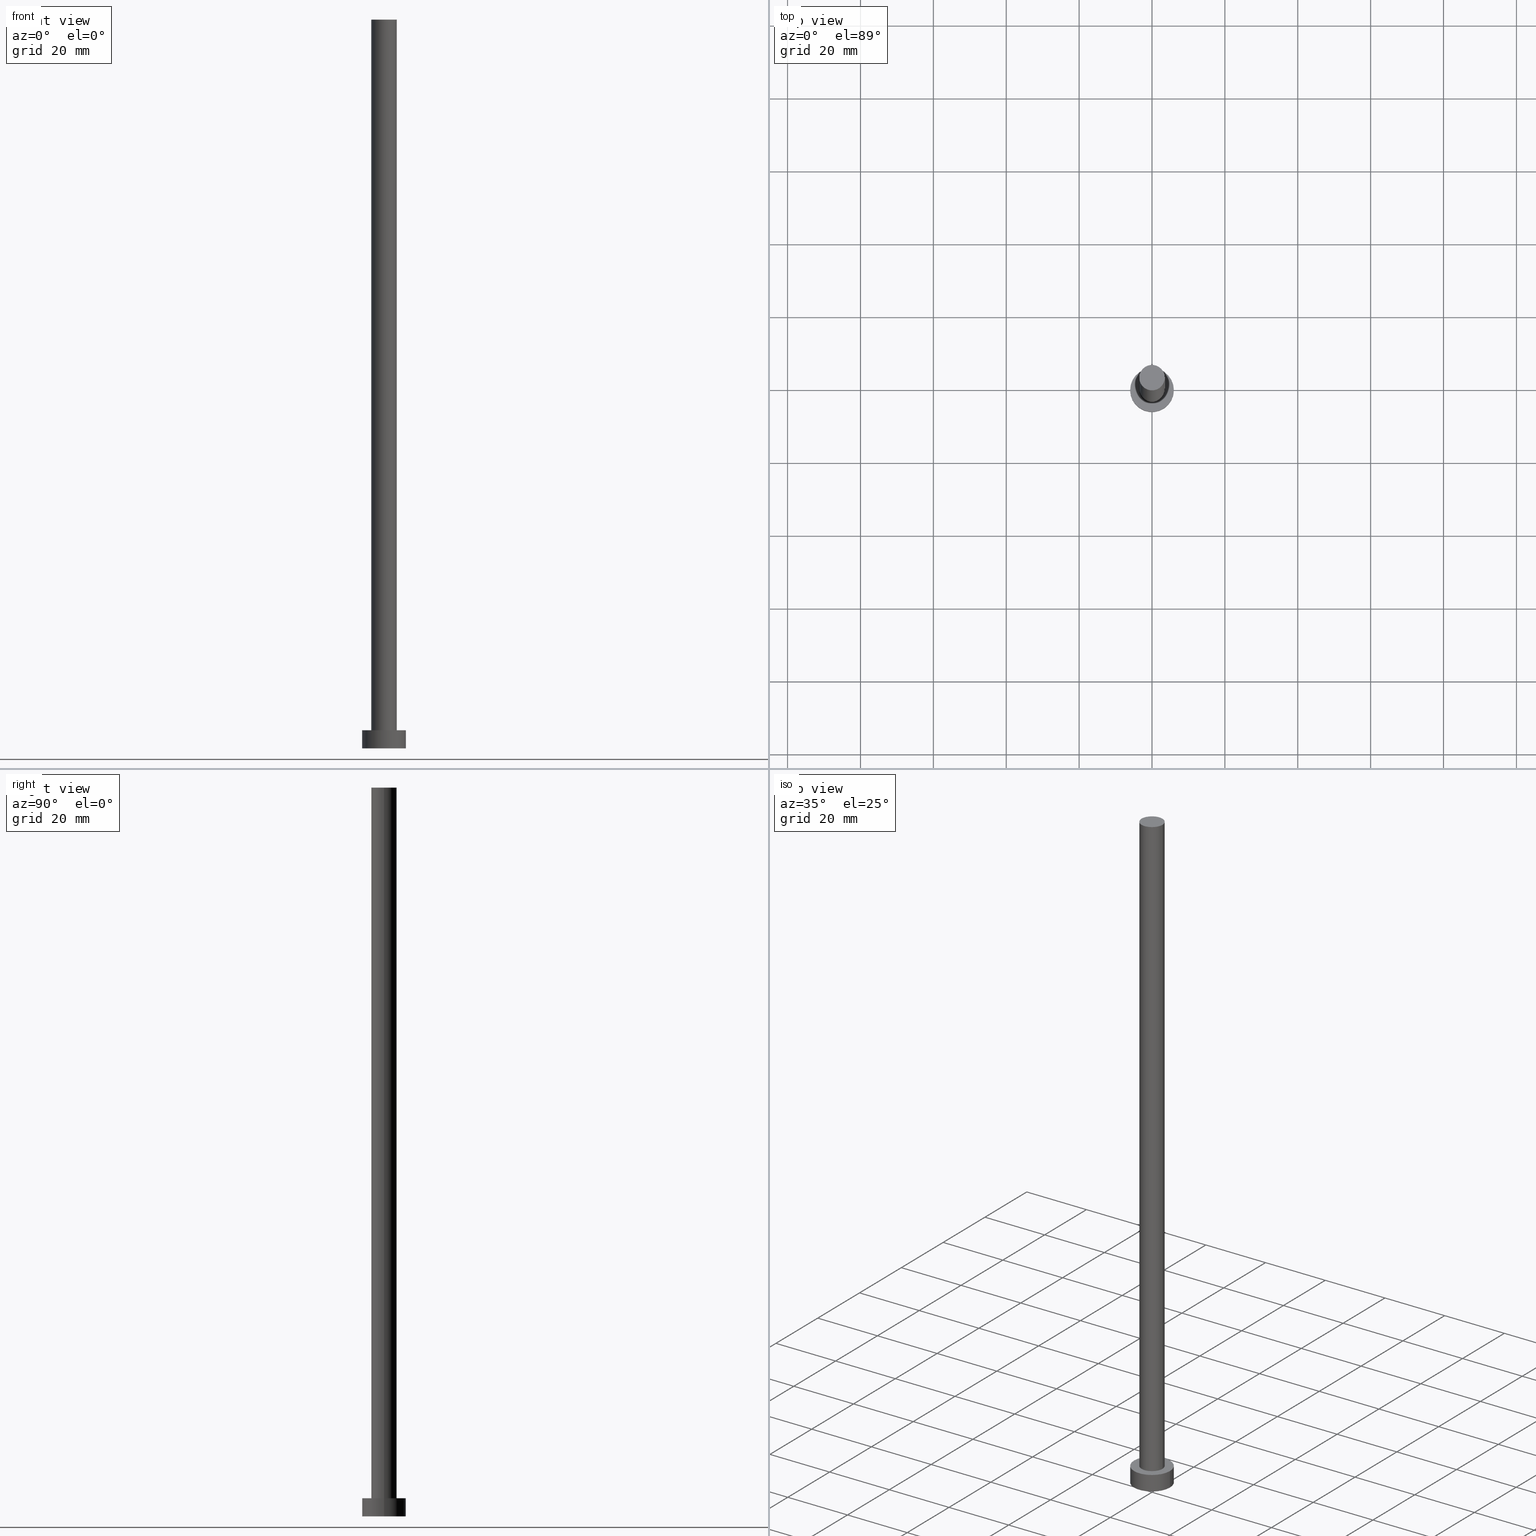
[diagram: canonical four-view strip — front | top / right | iso, engineering-drawing reading convention]
A machine part, canonical four-view strip (front | top / right | iso — engineering-drawing reading convention). The complete STEP part file that produces these views, byte-faithful:
ISO-10303-21;
HEADER;
FILE_DESCRIPTION (( 'STEP AP203' ),
    '1' );
FILE_NAME ('d45a.STEP',
    '2023-02-12T11:59:40',
    ( '' ),
    ( '' ),
    'SwSTEP 2.0',
    'SolidWorks 2019',
    '' );
FILE_SCHEMA (( 'CONFIG_CONTROL_DESIGN' ));
ENDSEC;

DATA;
#1 = CALENDAR_DATE ( 2023, 12, 2 ) ;
#2 = CYLINDRICAL_SURFACE ( 'NONE', #116, 6.000000000000000888 ) ;
#3 = APPROVAL ( #161, 'NEUR�EN�' ) ;
#4 = CIRCLE ( 'NONE', #154, 6.000000000000000888 ) ;
#5 = DIRECTION ( 'NONE',  ( 0.000000000000000000, 0.000000000000000000, 1.000000000000000000 ) ) ;
#6 = DIRECTION ( 'NONE',  ( -0.000000000000000000, -0.000000000000000000, -1.000000000000000000 ) ) ;
#7 = CALENDAR_DATE ( 2023, 12, 2 ) ;
#8 = ORIENTED_EDGE ( 'NONE', *, *, #114, .T. ) ;
#9 = DIRECTION ( 'NONE',  ( 1.000000000000000000, 0.000000000000000000, -0.000000000000000000 ) ) ;
#10 = DIRECTION ( 'NONE',  ( 0.000000000000000000, 0.000000000000000000, 1.000000000000000000 ) ) ;
#11 = CLOSED_SHELL ( 'NONE', ( #110, #78, #155, #21, #197, #191, #241 ) ) ;
#12 = FACE_BOUND ( 'NONE', #140, .T. ) ;
#13 = CARTESIAN_POINT ( 'NONE',  ( 6.000000000000000888, 7.347880794884120722E-16, 0.000000000000000000 ) ) ;
#14 = CC_DESIGN_PERSON_AND_ORGANIZATION_ASSIGNMENT ( #99, #151, ( #182 ) ) ;
#15 = CIRCLE ( 'NONE', #249, 3.500000000000000000 ) ;
#16 = PERSON_AND_ORGANIZATION_ROLE ( 'design_supplier' ) ;
#17 = CC_DESIGN_APPROVAL ( #3, ( #52 ) ) ;
#18 = CALENDAR_DATE ( 2023, 12, 2 ) ;
#19 = CARTESIAN_POINT ( 'NONE',  ( 0.000000000000000000, 0.000000000000000000, 0.000000000000000000 ) ) ;
#20 = CARTESIAN_POINT ( 'NONE',  ( 0.000000000000000000, 0.000000000000000000, 5.000000000000000000 ) ) ;
#21 = ADVANCED_FACE ( 'NONE', ( #12, #196 ), #92, .T. ) ;
#22 = EDGE_CURVE ( 'NONE', #133, #68, #15, .T. ) ;
#23 = DIRECTION ( 'NONE',  ( 0.000000000000000000, 0.000000000000000000, 1.000000000000000000 ) ) ;
#24 = DIRECTION ( 'NONE',  ( -0.000000000000000000, -0.000000000000000000, -1.000000000000000000 ) ) ;
#25 = PERSON_AND_ORGANIZATION_ROLE ( 'design_owner' ) ;
#26 = DIRECTION ( 'NONE',  ( 1.000000000000000000, 0.000000000000000000, 0.000000000000000000 ) ) ;
#27 = VERTEX_POINT ( 'NONE', #13 ) ;
#28 = FACE_OUTER_BOUND ( 'NONE', #250, .T. ) ;
#29 = CC_DESIGN_DATE_AND_TIME_ASSIGNMENT ( #231, #227, ( #52 ) ) ;
#30 = EDGE_LOOP ( 'NONE', ( #242, #236, #96, #117 ) ) ;
#31 = ORIENTED_EDGE ( 'NONE', *, *, #206, .F. ) ;
#32 = DIRECTION ( 'NONE',  ( 1.000000000000000000, 0.000000000000000000, -0.000000000000000000 ) ) ;
#33 = PERSON_AND_ORGANIZATION ( #101, #130 ) ;
#34 = DIRECTION ( 'NONE',  ( -0.000000000000000000, -0.000000000000000000, -1.000000000000000000 ) ) ;
#35 = DIRECTION ( 'NONE',  ( 1.000000000000000000, 0.000000000000000000, 0.000000000000000000 ) ) ;
#36 = APPROVAL_DATE_TIME ( #221, #3 ) ;
#37 = CC_DESIGN_PERSON_AND_ORGANIZATION_ASSIGNMENT ( #172, #70, ( #123 ) ) ;
#38 = CC_DESIGN_SECURITY_CLASSIFICATION ( #182, ( #123 ) ) ;
#39 = COORDINATED_UNIVERSAL_TIME_OFFSET ( 1, 0, .AHEAD. ) ;
#40 = CARTESIAN_POINT ( 'NONE',  ( 0.000000000000000000, 0.000000000000000000, 200.0000000000000000 ) ) ;
#41 = EDGE_CURVE ( 'NONE', #81, #198, #94, .T. ) ;
#42 = DIRECTION ( 'NONE',  ( -0.000000000000000000, -0.000000000000000000, -1.000000000000000000 ) ) ;
#43 = PRODUCT ( 'd45a', 'd45a', '', ( #240 ) ) ;
#44 = DIRECTION ( 'NONE',  ( 1.000000000000000000, 0.000000000000000000, 0.000000000000000000 ) ) ;
#45 = VECTOR ( 'NONE', #138, 1000.000000000000000 ) ;
#46 = FACE_OUTER_BOUND ( 'NONE', #216, .T. ) ;
#47 = ADVANCED_BREP_SHAPE_REPRESENTATION ( 'd45a', ( #167, #143 ), #113 ) ;
#48 = APPROVAL_PERSON_ORGANIZATION ( #170, #135, #95 ) ;
#49 = LINE ( 'NONE', #229, #64 ) ;
#50 = CARTESIAN_POINT ( 'NONE',  ( 0.000000000000000000, 0.000000000000000000, 5.000000000000000000 ) ) ;
#51 = CARTESIAN_POINT ( 'NONE',  ( 0.000000000000000000, 0.000000000000000000, 5.000000000000000000 ) ) ;
#52 = PRODUCT_DEFINITION ( 'NEZN�M�', '', #123, #59 ) ;
#53 = DIRECTION ( 'NONE',  ( 0.000000000000000000, 0.000000000000000000, 1.000000000000000000 ) ) ;
#54 = APPROVAL_ROLE ( '' ) ;
#55 = APPROVAL ( #203, 'NEUR�EN�' ) ;
#56 = AXIS2_PLACEMENT_3D ( 'NONE', #245, #23, #225 ) ;
#57 = ORIENTED_EDGE ( 'NONE', *, *, #58, .F. ) ;
#58 = EDGE_CURVE ( 'NONE', #68, #133, #186, .T. ) ;
#59 = DESIGN_CONTEXT ( 'detailed design', #72, 'design' ) ;
#60 = ORIENTED_EDGE ( 'NONE', *, *, #67, .F. ) ;
#61 = CARTESIAN_POINT ( 'NONE',  ( -3.500000000000000000, 0.000000000000000000, 200.0000000000000000 ) ) ;
#62 = CYLINDRICAL_SURFACE ( 'NONE', #243, 6.000000000000000888 ) ;
#63 = CARTESIAN_POINT ( 'NONE',  ( 0.000000000000000000, 0.000000000000000000, 5.000000000000000000 ) ) ;
#64 = VECTOR ( 'NONE', #6, 1000.000000000000000 ) ;
#65 = EDGE_LOOP ( 'NONE', ( #31, #107 ) ) ;
#66 = SHAPE_DEFINITION_REPRESENTATION ( #246, #47 ) ;
#67 = EDGE_CURVE ( 'NONE', #131, #133, #219, .T. ) ;
#68 = VERTEX_POINT ( 'NONE', #218 ) ;
#69 = DIRECTION ( 'NONE',  ( -0.000000000000000000, -0.000000000000000000, -1.000000000000000000 ) ) ;
#70 = PERSON_AND_ORGANIZATION_ROLE ( 'creator' ) ;
#71 = DIRECTION ( 'NONE',  ( 0.000000000000000000, 0.000000000000000000, 1.000000000000000000 ) ) ;
#72 = APPLICATION_CONTEXT ( 'configuration controlled 3d designs of mechanical parts and assemblies' ) ;
#73 = DATE_AND_TIME ( #1, #202 ) ;
#74 = EDGE_CURVE ( 'NONE', #147, #81, #199, .T. ) ;
#75 = PERSON_AND_ORGANIZATION ( #101, #130 ) ;
#76 = CARTESIAN_POINT ( 'NONE',  ( 3.500000000000000000, 4.286263797015736595E-16, 200.0000000000000000 ) ) ;
#77 = ORIENTED_EDGE ( 'NONE', *, *, #121, .F. ) ;
#78 = ADVANCED_FACE ( 'NONE', ( #178 ), #2, .T. ) ;
#79 = LINE ( 'NONE', #223, #90 ) ;
#80 = PERSON_AND_ORGANIZATION ( #101, #130 ) ;
#81 = VERTEX_POINT ( 'NONE', #200 ) ;
#82 = DIRECTION ( 'NONE',  ( 0.000000000000000000, 0.000000000000000000, 1.000000000000000000 ) ) ;
#83 = ORIENTED_EDGE ( 'NONE', *, *, #58, .T. ) ;
#84 = DIRECTION ( 'NONE',  ( 0.000000000000000000, 0.000000000000000000, 1.000000000000000000 ) ) ;
#85 = PRODUCT_RELATED_PRODUCT_CATEGORY ( 'detail', '', ( #43 ) ) ;
#86 = APPROVAL_PERSON_ORGANIZATION ( #210, #55, #255 ) ;
#87 =( LENGTH_UNIT ( ) NAMED_UNIT ( * ) SI_UNIT ( .MILLI., .METRE. ) );
#88 = CYLINDRICAL_SURFACE ( 'NONE', #215, 3.500000000000000000 ) ;
#89 = COORDINATED_UNIVERSAL_TIME_OFFSET ( 1, 0, .AHEAD. ) ;
#90 = VECTOR ( 'NONE', #42, 1000.000000000000000 ) ;
#91 = ORIENTED_EDGE ( 'NONE', *, *, #41, .T. ) ;
#92 = PLANE ( 'NONE',  #149 ) ;
#93 = LOCAL_TIME ( 12, 59, 40.00000000000000000, #89 ) ;
#94 = LINE ( 'NONE', #253, #158 ) ;
#95 = APPROVAL_ROLE ( '' ) ;
#96 = ORIENTED_EDGE ( 'NONE', *, *, #201, .T. ) ;
#97 = APPROVAL_DATE_TIME ( #237, #55 ) ;
#98 = DATE_TIME_ROLE ( 'classification_date' ) ;
#99 = PERSON_AND_ORGANIZATION ( #101, #130 ) ;
#100 = DIRECTION ( 'NONE',  ( 0.000000000000000000, 0.000000000000000000, 1.000000000000000000 ) ) ;
#101 = PERSON ( 'NEUR�EN�', 'NEUR�EN�', 'NEUR�EN�', ('NEUR�EN�'), ('NEUR�EN�'), ('NEUR�EN�') ) ;
#102 = PERSON_AND_ORGANIZATION_ROLE ( 'creator' ) ;
#103 = CC_DESIGN_PERSON_AND_ORGANIZATION_ASSIGNMENT ( #80, #25, ( #43 ) ) ;
#104 = AXIS2_PLACEMENT_3D ( 'NONE', #247, #188, #44 ) ;
#105 = ORIENTED_EDGE ( 'NONE', *, *, #235, .F. ) ;
#106 = CARTESIAN_POINT ( 'NONE',  ( 0.000000000000000000, 0.000000000000000000, 0.000000000000000000 ) ) ;
#107 = ORIENTED_EDGE ( 'NONE', *, *, #201, .F. ) ;
#108 = CARTESIAN_POINT ( 'NONE',  ( 0.000000000000000000, 0.000000000000000000, 0.000000000000000000 ) ) ;
#109 = CARTESIAN_POINT ( 'NONE',  ( -6.000000000000000888, 0.000000000000000000, 0.000000000000000000 ) ) ;
#110 = ADVANCED_FACE ( 'NONE', ( #118 ), #175, .T. ) ;
#111 = SECURITY_CLASSIFICATION_LEVEL ( 'unclassified' ) ;
#112 = DIRECTION ( 'NONE',  ( 1.000000000000000000, 0.000000000000000000, 0.000000000000000000 ) ) ;
#113 =( GEOMETRIC_REPRESENTATION_CONTEXT ( 3 ) GLOBAL_UNCERTAINTY_ASSIGNED_CONTEXT ( ( #171 ) ) GLOBAL_UNIT_ASSIGNED_CONTEXT ( ( #87, #233, #181 ) ) REPRESENTATION_CONTEXT ( 'NONE', 'WORKASPACE' ) );
#114 = EDGE_CURVE ( 'NONE', #244, #68, #79, .T. ) ;
#115 = COORDINATED_UNIVERSAL_TIME_OFFSET ( 1, 0, .AHEAD. ) ;
#116 = AXIS2_PLACEMENT_3D ( 'NONE', #156, #34, #119 ) ;
#117 = ORIENTED_EDGE ( 'NONE', *, *, #41, .F. ) ;
#118 = FACE_OUTER_BOUND ( 'NONE', #192, .T. ) ;
#119 = DIRECTION ( 'NONE',  ( -1.000000000000000000, 0.000000000000000000, 0.000000000000000000 ) ) ;
#120 = DIRECTION ( 'NONE',  ( 1.000000000000000000, 0.000000000000000000, 0.000000000000000000 ) ) ;
#121 = EDGE_CURVE ( 'NONE', #81, #147, #4, .T. ) ;
#122 = PERSON_AND_ORGANIZATION ( #101, #130 ) ;
#123 = PRODUCT_DEFINITION_FORMATION_WITH_SPECIFIED_SOURCE ( 'LIBOVOLN�', '', #43, .NOT_KNOWN. ) ;
#124 = DIRECTION ( 'NONE',  ( 1.000000000000000000, 0.000000000000000000, -0.000000000000000000 ) ) ;
#125 = ORIENTED_EDGE ( 'NONE', *, *, #235, .T. ) ;
#126 = FACE_OUTER_BOUND ( 'NONE', #65, .T. ) ;
#127 = CARTESIAN_POINT ( 'NONE',  ( 0.000000000000000000, 0.000000000000000000, 5.000000000000000000 ) ) ;
#128 = CC_DESIGN_APPROVAL ( #135, ( #182 ) ) ;
#129 = DIRECTION ( 'NONE',  ( -1.000000000000000000, 0.000000000000000000, 0.000000000000000000 ) ) ;
#130 = ORGANIZATION ( 'NEUR�EN�', 'NEUR�EN�', '' ) ;
#131 = VERTEX_POINT ( 'NONE', #61 ) ;
#132 = APPROVAL_DATE_TIME ( #73, #135 ) ;
#133 = VERTEX_POINT ( 'NONE', #226 ) ;
#134 = CARTESIAN_POINT ( 'NONE',  ( 0.000000000000000000, 0.000000000000000000, 5.000000000000000000 ) ) ;
#135 = APPROVAL ( #153, 'NEUR�EN�' ) ;
#136 = ORIENTED_EDGE ( 'NONE', *, *, #74, .T. ) ;
#137 = AXIS2_PLACEMENT_3D ( 'NONE', #51, #53, #35 ) ;
#138 = DIRECTION ( 'NONE',  ( -0.000000000000000000, -0.000000000000000000, -1.000000000000000000 ) ) ;
#139 = APPLICATION_PROTOCOL_DEFINITION ( 'international standard', 'config_control_design', 1994, #72 ) ;
#140 = EDGE_LOOP ( 'NONE', ( #251, #57 ) ) ;
#141 = CALENDAR_DATE ( 2023, 12, 2 ) ;
#142 = CARTESIAN_POINT ( 'NONE',  ( 0.000000000000000000, 0.000000000000000000, 200.0000000000000000 ) ) ;
#143 = AXIS2_PLACEMENT_3D ( 'NONE', #19, #71, #224 ) ;
#144 = APPLICATION_CONTEXT ( 'configuration controlled 3d designs of mechanical parts and assemblies' ) ;
#145 = AXIS2_PLACEMENT_3D ( 'NONE', #142, #24, #205 ) ;
#146 = CIRCLE ( 'NONE', #168, 6.000000000000000888 ) ;
#147 = VERTEX_POINT ( 'NONE', #248 ) ;
#148 = PLANE ( 'NONE',  #174 ) ;
#149 = AXIS2_PLACEMENT_3D ( 'NONE', #134, #169, #32 ) ;
#150 = DIRECTION ( 'NONE',  ( -0.000000000000000000, -0.000000000000000000, -1.000000000000000000 ) ) ;
#151 = PERSON_AND_ORGANIZATION_ROLE ( 'classification_officer' ) ;
#152 = CIRCLE ( 'NONE', #56, 3.500000000000000000 ) ;
#153 = APPROVAL_STATUS ( 'not_yet_approved' ) ;
#154 = AXIS2_PLACEMENT_3D ( 'NONE', #127, #162, #209 ) ;
#155 = ADVANCED_FACE ( 'NONE', ( #46 ), #62, .T. ) ;
#156 = CARTESIAN_POINT ( 'NONE',  ( 0.000000000000000000, 0.000000000000000000, 5.000000000000000000 ) ) ;
#157 = APPLICATION_PROTOCOL_DEFINITION ( 'international standard', 'config_control_design', 1994, #144 ) ;
#158 = VECTOR ( 'NONE', #150, 1000.000000000000000 ) ;
#159 = LOCAL_TIME ( 12, 59, 40.00000000000000000, #252 ) ;
#160 = ORIENTED_EDGE ( 'NONE', *, *, #114, .F. ) ;
#161 = APPROVAL_STATUS ( 'not_yet_approved' ) ;
#162 = DIRECTION ( 'NONE',  ( 0.000000000000000000, 0.000000000000000000, 1.000000000000000000 ) ) ;
#163 = EDGE_LOOP ( 'NONE', ( #160, #194, #180, #232 ) ) ;
#164 = DIRECTION ( 'NONE',  ( -1.000000000000000000, 0.000000000000000000, 0.000000000000000000 ) ) ;
#165 = AXIS2_PLACEMENT_3D ( 'NONE', #106, #10, #184 ) ;
#166 = CARTESIAN_POINT ( 'NONE',  ( 0.000000000000000000, 0.000000000000000000, 200.0000000000000000 ) ) ;
#167 = MANIFOLD_SOLID_BREP ( 'P�idat vysunut�m3', #11 ) ;
#168 = AXIS2_PLACEMENT_3D ( 'NONE', #108, #5, #26 ) ;
#169 = DIRECTION ( 'NONE',  ( 0.000000000000000000, 0.000000000000000000, 1.000000000000000000 ) ) ;
#170 = PERSON_AND_ORGANIZATION ( #101, #130 ) ;
#171 = UNCERTAINTY_MEASURE_WITH_UNIT (LENGTH_MEASURE( 1.000000000000000082E-05 ), #87, 'distance_accuracy_value', 'NONE');
#172 = PERSON_AND_ORGANIZATION ( #101, #130 ) ;
#173 = CALENDAR_DATE ( 2023, 12, 2 ) ;
#174 = AXIS2_PLACEMENT_3D ( 'NONE', #207, #82, #9 ) ;
#175 = CYLINDRICAL_SURFACE ( 'NONE', #145, 3.500000000000000000 ) ;
#176 = COORDINATED_UNIVERSAL_TIME_OFFSET ( 1, 0, .AHEAD. ) ;
#177 = DATE_AND_TIME ( #173, #159 ) ;
#178 = FACE_OUTER_BOUND ( 'NONE', #30, .T. ) ;
#179 = CC_DESIGN_APPROVAL ( #55, ( #123 ) ) ;
#180 = ORIENTED_EDGE ( 'NONE', *, *, #67, .T. ) ;
#181 =( NAMED_UNIT ( * ) SI_UNIT ( $, .STERADIAN. ) SOLID_ANGLE_UNIT ( ) );
#182 = SECURITY_CLASSIFICATION ( '', '', #111 ) ;
#183 = EDGE_LOOP ( 'NONE', ( #185, #136 ) ) ;
#184 = DIRECTION ( 'NONE',  ( 1.000000000000000000, 0.000000000000000000, 0.000000000000000000 ) ) ;
#185 = ORIENTED_EDGE ( 'NONE', *, *, #121, .T. ) ;
#186 = CIRCLE ( 'NONE', #137, 3.500000000000000000 ) ;
#187 = PLANE ( 'NONE',  #220 ) ;
#188 = DIRECTION ( 'NONE',  ( 0.000000000000000000, 0.000000000000000000, 1.000000000000000000 ) ) ;
#189 = FACE_OUTER_BOUND ( 'NONE', #163, .T. ) ;
#190 = CIRCLE ( 'NONE', #104, 3.500000000000000000 ) ;
#191 = ADVANCED_FACE ( 'NONE', ( #189 ), #88, .T. ) ;
#192 = EDGE_LOOP ( 'NONE', ( #105, #8, #83, #60 ) ) ;
#193 = ORIENTED_EDGE ( 'NONE', *, *, #254, .T. ) ;
#194 = ORIENTED_EDGE ( 'NONE', *, *, #254, .F. ) ;
#195 = LOCAL_TIME ( 12, 59, 40.00000000000000000, #39 ) ;
#196 = FACE_OUTER_BOUND ( 'NONE', #183, .T. ) ;
#197 = ADVANCED_FACE ( 'NONE', ( #126 ), #148, .F. ) ;
#198 = VERTEX_POINT ( 'NONE', #109 ) ;
#199 = CIRCLE ( 'NONE', #212, 6.000000000000000888 ) ;
#200 = CARTESIAN_POINT ( 'NONE',  ( -6.000000000000000888, 0.000000000000000000, 5.000000000000000000 ) ) ;
#201 = EDGE_CURVE ( 'NONE', #27, #198, #146, .T. ) ;
#202 = LOCAL_TIME ( 12, 59, 40.00000000000000000, #176 ) ;
#203 = APPROVAL_STATUS ( 'not_yet_approved' ) ;
#204 = CARTESIAN_POINT ( 'NONE',  ( -3.500000000000000000, 0.000000000000000000, 200.0000000000000000 ) ) ;
#205 = DIRECTION ( 'NONE',  ( -1.000000000000000000, 0.000000000000000000, 0.000000000000000000 ) ) ;
#206 = EDGE_CURVE ( 'NONE', #198, #27, #234, .T. ) ;
#207 = CARTESIAN_POINT ( 'NONE',  ( 0.000000000000000000, 0.000000000000000000, 0.000000000000000000 ) ) ;
#208 = APPROVAL_PERSON_ORGANIZATION ( #75, #3, #54 ) ;
#209 = DIRECTION ( 'NONE',  ( 1.000000000000000000, 0.000000000000000000, 0.000000000000000000 ) ) ;
#210 = PERSON_AND_ORGANIZATION ( #101, #130 ) ;
#211 = ORIENTED_EDGE ( 'NONE', *, *, #217, .F. ) ;
#212 = AXIS2_PLACEMENT_3D ( 'NONE', #20, #100, #120 ) ;
#213 = DIRECTION ( 'NONE',  ( 0.000000000000000000, 0.000000000000000000, 1.000000000000000000 ) ) ;
#214 = CC_DESIGN_PERSON_AND_ORGANIZATION_ASSIGNMENT ( #122, #102, ( #52 ) ) ;
#215 = AXIS2_PLACEMENT_3D ( 'NONE', #166, #69, #164 ) ;
#216 = EDGE_LOOP ( 'NONE', ( #211, #77, #91, #222 ) ) ;
#217 = EDGE_CURVE ( 'NONE', #147, #27, #49, .T. ) ;
#218 = CARTESIAN_POINT ( 'NONE',  ( 3.500000000000000000, 4.286263797015736595E-16, 5.000000000000000000 ) ) ;
#219 = LINE ( 'NONE', #204, #45 ) ;
#220 = AXIS2_PLACEMENT_3D ( 'NONE', #40, #84, #124 ) ;
#221 = DATE_AND_TIME ( #141, #195 ) ;
#222 = ORIENTED_EDGE ( 'NONE', *, *, #206, .T. ) ;
#223 = CARTESIAN_POINT ( 'NONE',  ( 3.500000000000000000, 4.286263797015736595E-16, 200.0000000000000000 ) ) ;
#224 = DIRECTION ( 'NONE',  ( 1.000000000000000000, 0.000000000000000000, 0.000000000000000000 ) ) ;
#225 = DIRECTION ( 'NONE',  ( 1.000000000000000000, 0.000000000000000000, 0.000000000000000000 ) ) ;
#226 = CARTESIAN_POINT ( 'NONE',  ( -3.500000000000000000, 0.000000000000000000, 5.000000000000000000 ) ) ;
#227 = DATE_TIME_ROLE ( 'creation_date' ) ;
#228 = CC_DESIGN_DATE_AND_TIME_ASSIGNMENT ( #177, #98, ( #182 ) ) ;
#229 = CARTESIAN_POINT ( 'NONE',  ( 6.000000000000000888, 7.347880794884120722E-16, 5.000000000000000000 ) ) ;
#230 = DIRECTION ( 'NONE',  ( -0.000000000000000000, -0.000000000000000000, -1.000000000000000000 ) ) ;
#231 = DATE_AND_TIME ( #7, #93 ) ;
#232 = ORIENTED_EDGE ( 'NONE', *, *, #22, .T. ) ;
#233 =( NAMED_UNIT ( * ) PLANE_ANGLE_UNIT ( ) SI_UNIT ( $, .RADIAN. ) );
#234 = CIRCLE ( 'NONE', #165, 6.000000000000000888 ) ;
#235 = EDGE_CURVE ( 'NONE', #244, #131, #152, .T. ) ;
#236 = ORIENTED_EDGE ( 'NONE', *, *, #217, .T. ) ;
#237 = DATE_AND_TIME ( #18, #238 ) ;
#238 = LOCAL_TIME ( 12, 59, 40.00000000000000000, #115 ) ;
#239 = CC_DESIGN_PERSON_AND_ORGANIZATION_ASSIGNMENT ( #33, #16, ( #123 ) ) ;
#240 = MECHANICAL_CONTEXT ( 'NONE', #144, 'mechanical' ) ;
#241 = ADVANCED_FACE ( 'NONE', ( #28 ), #187, .T. ) ;
#242 = ORIENTED_EDGE ( 'NONE', *, *, #74, .F. ) ;
#243 = AXIS2_PLACEMENT_3D ( 'NONE', #63, #230, #129 ) ;
#244 = VERTEX_POINT ( 'NONE', #76 ) ;
#245 = CARTESIAN_POINT ( 'NONE',  ( 0.000000000000000000, 0.000000000000000000, 200.0000000000000000 ) ) ;
#246 = PRODUCT_DEFINITION_SHAPE ( 'NONE', 'NONE',  #52 ) ;
#247 = CARTESIAN_POINT ( 'NONE',  ( 0.000000000000000000, 0.000000000000000000, 200.0000000000000000 ) ) ;
#248 = CARTESIAN_POINT ( 'NONE',  ( 6.000000000000000888, 7.347880794884120722E-16, 5.000000000000000000 ) ) ;
#249 = AXIS2_PLACEMENT_3D ( 'NONE', #50, #213, #112 ) ;
#250 = EDGE_LOOP ( 'NONE', ( #193, #125 ) ) ;
#251 = ORIENTED_EDGE ( 'NONE', *, *, #22, .F. ) ;
#252 = COORDINATED_UNIVERSAL_TIME_OFFSET ( 1, 0, .AHEAD. ) ;
#253 = CARTESIAN_POINT ( 'NONE',  ( -6.000000000000000888, 0.000000000000000000, 5.000000000000000000 ) ) ;
#254 = EDGE_CURVE ( 'NONE', #131, #244, #190, .T. ) ;
#255 = APPROVAL_ROLE ( '' ) ;
ENDSEC;
END-ISO-10303-21;
